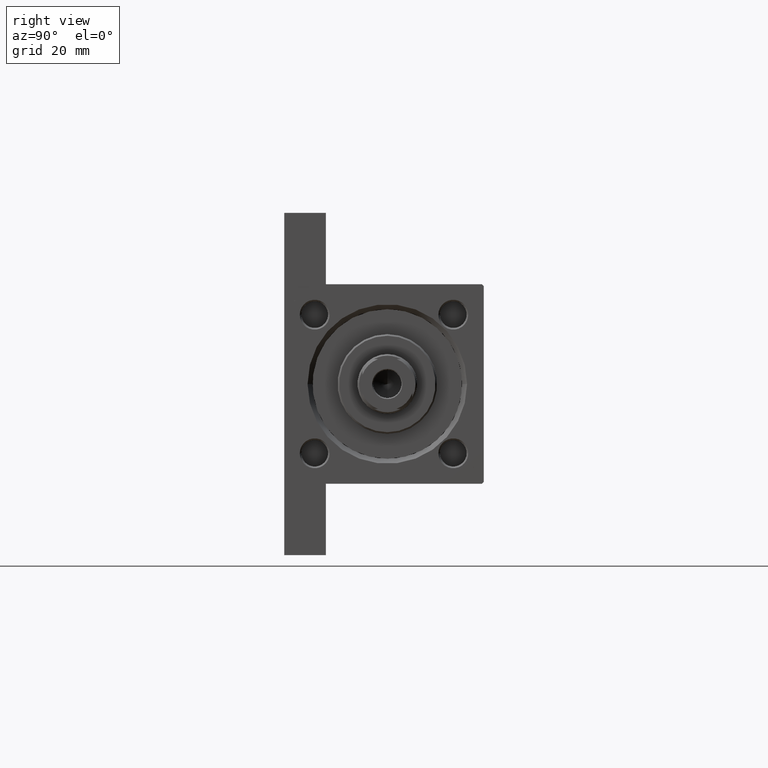
[diagram: clean part render]
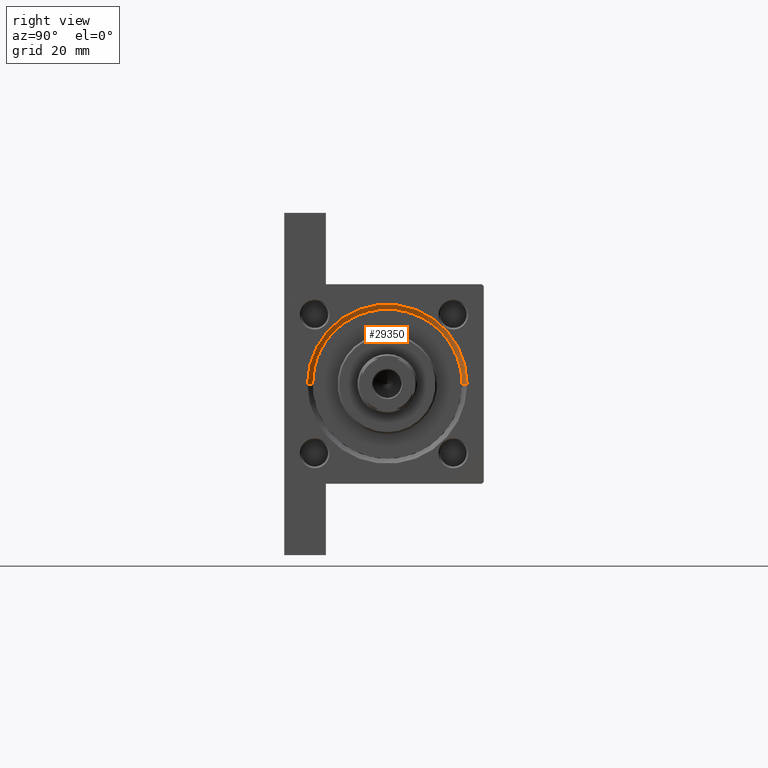
[diagram: same view with one face highlighted and labeled with its STEP entity id]
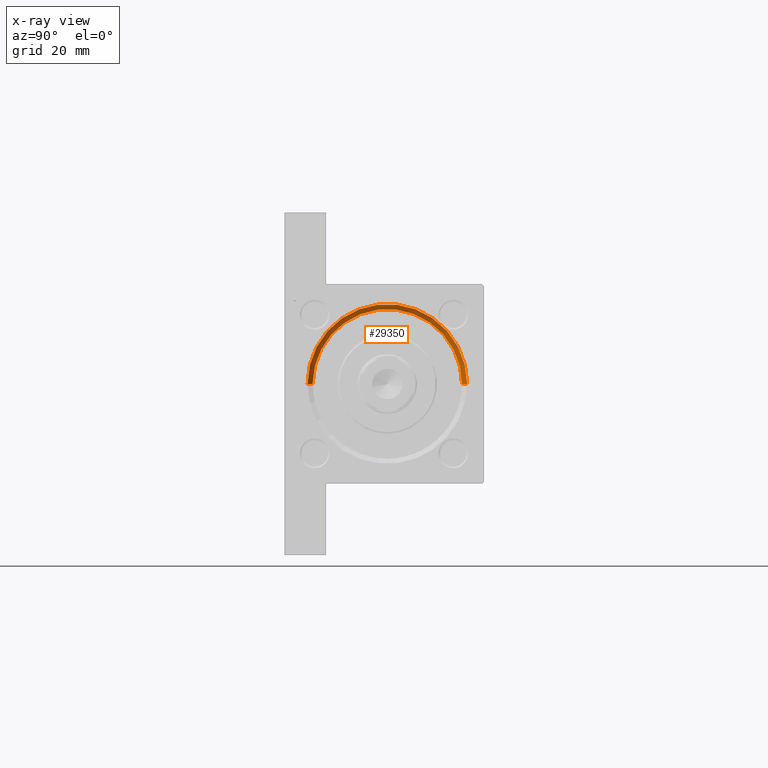
[diagram: x-ray of the same camera — body ghosted, the highlighted face saturated]
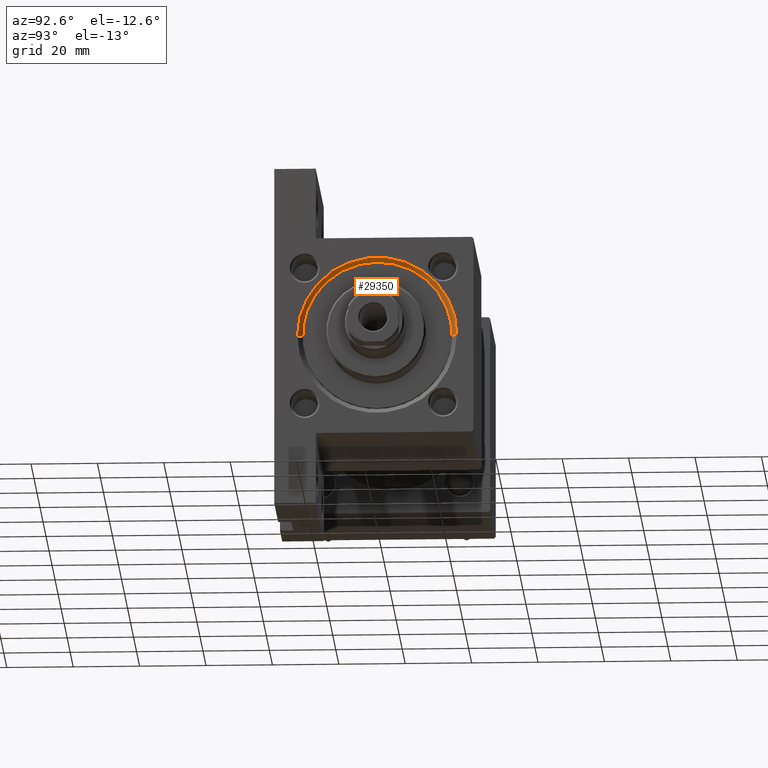
[diagram: same view with one face highlighted and labeled with its STEP entity id]
A machine part, right view. The second image highlights one B-rep face of the part: STEP entity #29350.
The next image is the same camera in x-ray: the body ghosted, the highlighted face saturated — about 0% of this face is hidden behind the body in this view.
A second angle (auxiliary view) of the same face is appended — the face is thin or edge-on in the first view.
In plain terms, the highlighted conical surface has half-angle 45 deg.
Its self-contained STEP definition (entity closure, byte-faithful):
#3233 = DIRECTION ( 'NONE',  ( 1.000000000000000000, 0.000000000000000000, 0.000000000000000000 ) ) ;
#3491 = CIRCLE ( 'NONE', #36546, 24.00000000000003908 ) ;
#4746 = ORIENTED_EDGE ( 'NONE', *, *, #42628, .F. ) ;
#6152 = ORIENTED_EDGE ( 'NONE', *, *, #28316, .T. ) ;
#6591 = DIRECTION ( 'NONE',  ( 0.000000000000000000, 0.000000000000000000, 1.000000000000000000 ) ) ;
#7004 = LINE ( 'NONE', #44693, #27913 ) ;
#7444 = CARTESIAN_POINT ( 'NONE',  ( 148.0000000000000000, 2.939152317953652628E-15, 25.00000000000004619 ) ) ;
#9980 = DIRECTION ( 'NONE',  ( 0.7071067811865524577, 0.000000000000000000, -0.7071067811865426878 ) ) ;
#13407 = CARTESIAN_POINT ( 'NONE',  ( 146.4999999999999432, 2.755455298081545172E-15, 23.50000000000001066 ) ) ;
#18270 = EDGE_LOOP ( 'NONE', ( #45485, #6152, #21047, #4746 ) ) ;
#20101 = DIRECTION ( 'NONE',  ( 0.000000000000000000, 0.000000000000000000, 1.000000000000000000 ) ) ;
#21047 = ORIENTED_EDGE ( 'NONE', *, *, #41534, .F. ) ;
#24039 = CARTESIAN_POINT ( 'NONE',  ( 148.0000000000000000, 0.000000000000000000, 1.000000000000007772 ) ) ;
#24798 = AXIS2_PLACEMENT_3D ( 'NONE', #39861, #36416, #6591 ) ;
#25903 = CARTESIAN_POINT ( 'NONE',  ( 146.4999999999999432, 2.755455298081545172E-15, 23.50000000000001066 ) ) ;
#25905 = CARTESIAN_POINT ( 'NONE',  ( 148.0000000000000000, 0.000000000000000000, -23.00000000000003197 ) ) ;
#27201 = CARTESIAN_POINT ( 'NONE',  ( 146.4999999999999432, 0.000000000000000000, -21.49999999999999645 ) ) ;
#27913 = VECTOR ( 'NONE', #9980, 1000.000000000000000 ) ;
#28316 = EDGE_CURVE ( 'NONE', #36291, #29133, #28904, .T. ) ;
#28904 = LINE ( 'NONE', #13407, #39312 ) ;
#29133 = VERTEX_POINT ( 'NONE', #7444 ) ;
#29308 = VERTEX_POINT ( 'NONE', #25905 ) ;
#29350 = ADVANCED_FACE ( 'NONE', ( #43900 ), #33089, .F. ) ;
#32828 = CARTESIAN_POINT ( 'NONE',  ( 146.4999999999999432, 0.000000000000000000, 1.000000000000007772 ) ) ;
#33048 = AXIS2_PLACEMENT_3D ( 'NONE', #32828, #3233, #47848 ) ;
#33089 = CONICAL_SURFACE ( 'NONE', #33048, 22.50000000000000355, 0.7853981633974415066 ) ;
#36291 = VERTEX_POINT ( 'NONE', #25903 ) ;
#36416 = DIRECTION ( 'NONE',  ( 1.000000000000000000, 0.000000000000000000, 0.000000000000000000 ) ) ;
#36546 = AXIS2_PLACEMENT_3D ( 'NONE', #24039, #39056, #20101 ) ;
#39056 = DIRECTION ( 'NONE',  ( -1.000000000000000000, 0.000000000000000000, -0.000000000000000000 ) ) ;
#39312 = VECTOR ( 'NONE', #47629, 1000.000000000000000 ) ;
#39861 = CARTESIAN_POINT ( 'NONE',  ( 146.4999999999999432, 0.000000000000000000, 1.000000000000007772 ) ) ;
#41534 = EDGE_CURVE ( 'NONE', #29308, #29133, #3491, .T. ) ;
#42628 = EDGE_CURVE ( 'NONE', #46655, #29308, #7004, .T. ) ;
#43627 = CIRCLE ( 'NONE', #24798, 22.50000000000000355 ) ;
#43900 = FACE_OUTER_BOUND ( 'NONE', #18270, .T. ) ;
#44693 = CARTESIAN_POINT ( 'NONE',  ( 146.4999999999999432, 0.000000000000000000, -21.49999999999999645 ) ) ;
#45485 = ORIENTED_EDGE ( 'NONE', *, *, #45778, .F. ) ;
#45778 = EDGE_CURVE ( 'NONE', #36291, #46655, #43627, .T. ) ;
#46655 = VERTEX_POINT ( 'NONE', #27201 ) ;
#47629 = DIRECTION ( 'NONE',  ( 0.7071067811865524577, 8.659560562354874926E-17, 0.7071067811865426878 ) ) ;
#47848 = DIRECTION ( 'NONE',  ( 0.000000000000000000, 0.000000000000000000, -1.000000000000000000 ) ) ;